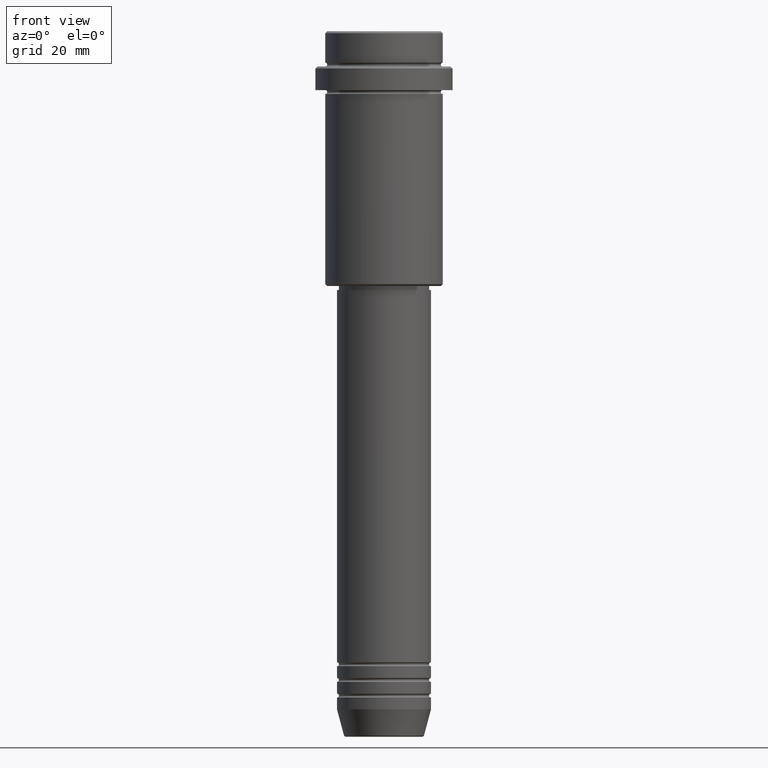
[diagram: clean part render]
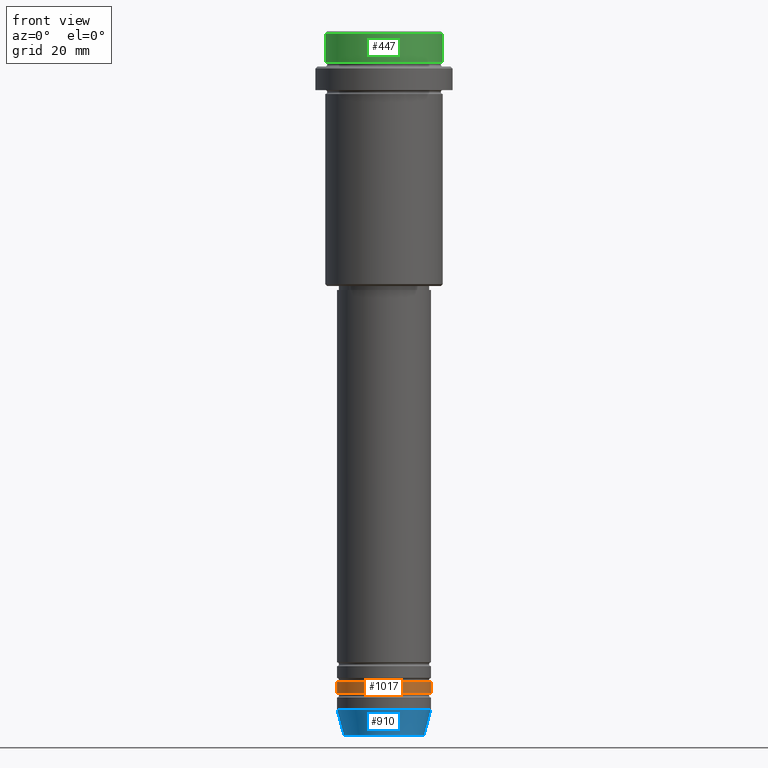
[diagram: same view with three faces highlighted in distinct colors, each labeled with its STEP entity id]
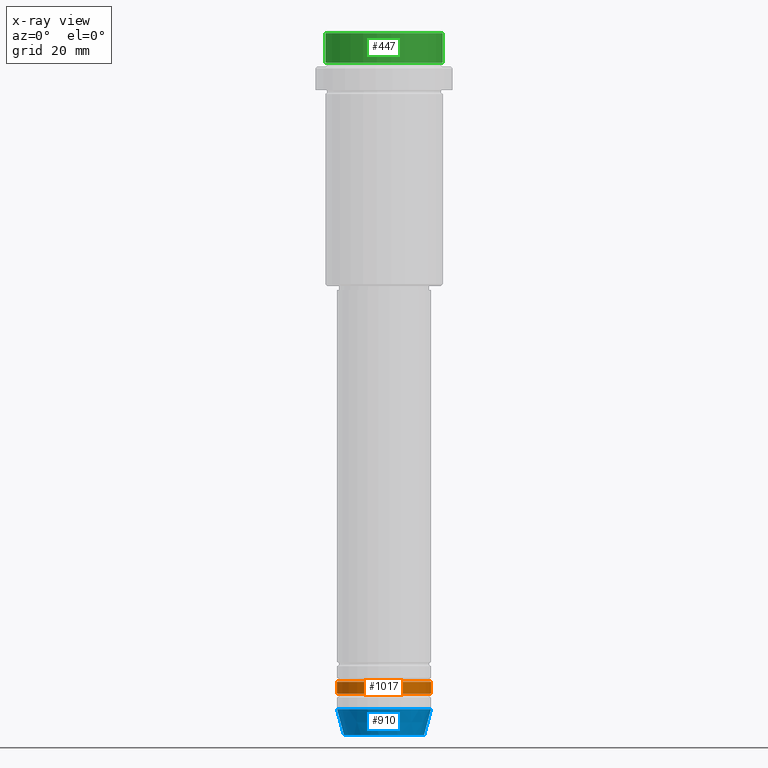
[diagram: x-ray of the same camera — body ghosted, the three highlighted faces saturated]
A machine part, front view with three faces highlighted in distinct colors.
The next image is the same camera in x-ray (body ghosted, the three faces saturated) — at least one of them is partly hidden behind the body in this view.
Their STEP definitions:

[orange] entity #1017 — the highlighted cylindrical surface (partial cylindrical patch) has radius 12 mm, axis along (-0, -0, 1).
#37 = DIRECTION ( 'NONE',  ( 1.000000000000000000, 0.000000000000000000, 0.000000000000000000 ) ) ;
#50 = ORIENTED_EDGE ( 'NONE', *, *, #73, .F. ) ;
#73 = EDGE_CURVE ( 'NONE', #305, #678, #1356, .T. ) ;
#95 = CARTESIAN_POINT ( 'NONE',  ( 0.000000000000000000, 0.000000000000000000, 0.000000000000000000 ) ) ;
#120 = CARTESIAN_POINT ( 'NONE',  ( -12.00000000000000000, 1.469576158976823947E-15, -165.9999999999999147 ) ) ;
#132 = DIRECTION ( 'NONE',  ( -0.000000000000000000, -0.000000000000000000, 1.000000000000000000 ) ) ;
#154 = AXIS2_PLACEMENT_3D ( 'NONE', #95, #753, #213 ) ;
#155 = CARTESIAN_POINT ( 'NONE',  ( -12.00000000000000000, 1.469576158976823947E-15, -168.9999999999999147 ) ) ;
#189 = EDGE_LOOP ( 'NONE', ( #1133, #1383, #1232, #50 ) ) ;
#195 = AXIS2_PLACEMENT_3D ( 'NONE', #669, #132, #1348 ) ;
#213 = DIRECTION ( 'NONE',  ( 1.000000000000000000, 0.000000000000000000, 0.000000000000000000 ) ) ;
#236 = LINE ( 'NONE', #867, #702 ) ;
#237 = CARTESIAN_POINT ( 'NONE',  ( 0.000000000000000000, 0.000000000000000000, -165.9999999999999147 ) ) ;
#255 = VERTEX_POINT ( 'NONE', #155 ) ;
#283 = EDGE_CURVE ( 'NONE', #255, #739, #718, .T. ) ;
#305 = VERTEX_POINT ( 'NONE', #120 ) ;
#358 = AXIS2_PLACEMENT_3D ( 'NONE', #237, #1100, #37 ) ;
#463 = EDGE_CURVE ( 'NONE', #255, #305, #743, .T. ) ;
#486 = VECTOR ( 'NONE', #944, 1000.000000000000000 ) ;
#543 = FACE_OUTER_BOUND ( 'NONE', #189, .T. ) ;
#577 = CARTESIAN_POINT ( 'NONE',  ( 12.00000000000000000, 0.000000000000000000, -165.9999999999999147 ) ) ;
#636 = CYLINDRICAL_SURFACE ( 'NONE', #154, 12.00000000000000000 ) ;
#667 = DIRECTION ( 'NONE',  ( -0.000000000000000000, -0.000000000000000000, 1.000000000000000000 ) ) ;
#669 = CARTESIAN_POINT ( 'NONE',  ( 0.000000000000000000, 0.000000000000000000, -168.9999999999999147 ) ) ;
#678 = VERTEX_POINT ( 'NONE', #577 ) ;
#702 = VECTOR ( 'NONE', #667, 1000.000000000000000 ) ;
#718 = CIRCLE ( 'NONE', #195, 12.00000000000000000 ) ;
#739 = VERTEX_POINT ( 'NONE', #1123 ) ;
#743 = LINE ( 'NONE', #963, #486 ) ;
#753 = DIRECTION ( 'NONE',  ( -0.000000000000000000, -0.000000000000000000, 1.000000000000000000 ) ) ;
#867 = CARTESIAN_POINT ( 'NONE',  ( 12.00000000000000000, 0.000000000000000000, 0.000000000000000000 ) ) ;
#939 = EDGE_CURVE ( 'NONE', #739, #678, #236, .T. ) ;
#944 = DIRECTION ( 'NONE',  ( -0.000000000000000000, -0.000000000000000000, 1.000000000000000000 ) ) ;
#963 = CARTESIAN_POINT ( 'NONE',  ( -12.00000000000000000, 1.469576158976823947E-15, 0.000000000000000000 ) ) ;
#1017 = ADVANCED_FACE ( 'NONE', ( #543 ), #636, .T. ) ;
#1100 = DIRECTION ( 'NONE',  ( -0.000000000000000000, -0.000000000000000000, 1.000000000000000000 ) ) ;
#1123 = CARTESIAN_POINT ( 'NONE',  ( 12.00000000000000000, 0.000000000000000000, -168.9999999999999147 ) ) ;
#1133 = ORIENTED_EDGE ( 'NONE', *, *, #463, .F. ) ;
#1232 = ORIENTED_EDGE ( 'NONE', *, *, #939, .T. ) ;
#1348 = DIRECTION ( 'NONE',  ( 1.000000000000000000, 0.000000000000000000, 0.000000000000000000 ) ) ;
#1356 = CIRCLE ( 'NONE', #358, 12.00000000000000000 ) ;
#1383 = ORIENTED_EDGE ( 'NONE', *, *, #283, .T. ) ;

[blue] entity #910 — the highlighted conical surface has half-angle 15 deg.
#10 = FACE_OUTER_BOUND ( 'NONE', #569, .T. ) ;
#35 = VECTOR ( 'NONE', #776, 1000.000000000000000 ) ;
#117 = EDGE_CURVE ( 'NONE', #1024, #540, #1115, .T. ) ;
#140 = ORIENTED_EDGE ( 'NONE', *, *, #117, .F. ) ;
#146 = EDGE_CURVE ( 'NONE', #1024, #931, #1121, .T. ) ;
#194 = DIRECTION ( 'NONE',  ( 0.2588190451025213501, 0.000000000000000000, 0.9659258262890680902 ) ) ;
#341 = CARTESIAN_POINT ( 'NONE',  ( 12.00000000000000000, 0.000000000000000000, -173.0000000000000284 ) ) ;
#423 = CONICAL_SURFACE ( 'NONE', #656, 12.00000000000000000, 0.2617993877991500740 ) ;
#433 = DIRECTION ( 'NONE',  ( 1.000000000000000000, 0.000000000000000000, 0.000000000000000000 ) ) ;
#445 = DIRECTION ( 'NONE',  ( 1.000000000000000000, 0.000000000000000000, 0.000000000000000000 ) ) ;
#478 = EDGE_CURVE ( 'NONE', #931, #990, #634, .T. ) ;
#506 = AXIS2_PLACEMENT_3D ( 'NONE', #1203, #1068, #445 ) ;
#524 = CARTESIAN_POINT ( 'NONE',  ( 0.000000000000000000, 0.000000000000000000, -173.0000000000000284 ) ) ;
#540 = VERTEX_POINT ( 'NONE', #616 ) ;
#569 = EDGE_LOOP ( 'NONE', ( #140, #698, #880, #1255 ) ) ;
#616 = CARTESIAN_POINT ( 'NONE',  ( -12.00000000000000000, 1.469576158976823947E-15, -173.0000000000000284 ) ) ;
#627 = CARTESIAN_POINT ( 'NONE',  ( 12.00000000000000000, 0.000000000000000000, -173.0000000000000284 ) ) ;
#634 = LINE ( 'NONE', #627, #960 ) ;
#656 = AXIS2_PLACEMENT_3D ( 'NONE', #524, #1395, #433 ) ;
#698 = ORIENTED_EDGE ( 'NONE', *, *, #146, .T. ) ;
#742 = CIRCLE ( 'NONE', #506, 12.00000000000000000 ) ;
#776 = DIRECTION ( 'NONE',  ( -0.2588190451025213501, 3.169619151431772337E-17, 0.9659258262890680902 ) ) ;
#874 = CARTESIAN_POINT ( 'NONE',  ( -10.22365507213719837, 1.360806402472383336E-15, -179.6294095225512706 ) ) ;
#880 = ORIENTED_EDGE ( 'NONE', *, *, #478, .T. ) ;
#896 = AXIS2_PLACEMENT_3D ( 'NONE', #1097, #999, #1191 ) ;
#902 = EDGE_CURVE ( 'NONE', #540, #990, #742, .T. ) ;
#910 = ADVANCED_FACE ( 'NONE', ( #10 ), #423, .T. ) ;
#931 = VERTEX_POINT ( 'NONE', #1192 ) ;
#960 = VECTOR ( 'NONE', #194, 1000.000000000000000 ) ;
#990 = VERTEX_POINT ( 'NONE', #341 ) ;
#999 = DIRECTION ( 'NONE',  ( -0.000000000000000000, -0.000000000000000000, 1.000000000000000000 ) ) ;
#1024 = VERTEX_POINT ( 'NONE', #874 ) ;
#1068 = DIRECTION ( 'NONE',  ( -0.000000000000000000, -0.000000000000000000, 1.000000000000000000 ) ) ;
#1097 = CARTESIAN_POINT ( 'NONE',  ( 0.000000000000000000, 0.000000000000000000, -179.6294095225512706 ) ) ;
#1115 = LINE ( 'NONE', #1321, #35 ) ;
#1121 = CIRCLE ( 'NONE', #896, 10.22365507213719660 ) ;
#1191 = DIRECTION ( 'NONE',  ( 1.000000000000000000, 0.000000000000000000, 0.000000000000000000 ) ) ;
#1192 = CARTESIAN_POINT ( 'NONE',  ( 10.22365507213719660, 0.000000000000000000, -179.6294095225512706 ) ) ;
#1203 = CARTESIAN_POINT ( 'NONE',  ( 0.000000000000000000, 0.000000000000000000, -173.0000000000000284 ) ) ;
#1255 = ORIENTED_EDGE ( 'NONE', *, *, #902, .F. ) ;
#1321 = CARTESIAN_POINT ( 'NONE',  ( -12.00000000000000000, 1.469576158976823947E-15, -173.0000000000000284 ) ) ;
#1395 = DIRECTION ( 'NONE',  ( -0.000000000000000000, -0.000000000000000000, 1.000000000000000000 ) ) ;

[green] entity #447 — the highlighted cylindrical surface (partial cylindrical patch) has radius 15 mm, axis along (-0, -0, 1).
#68 = EDGE_CURVE ( 'NONE', #138, #1238, #811, .T. ) ;
#71 = CARTESIAN_POINT ( 'NONE',  ( 15.00000000000000000, 0.000000000000000000, -0.4999999999999831246 ) ) ;
#78 = VECTOR ( 'NONE', #624, 1000.000000000000000 ) ;
#133 = ORIENTED_EDGE ( 'NONE', *, *, #1187, .T. ) ;
#138 = VERTEX_POINT ( 'NONE', #71 ) ;
#185 = CARTESIAN_POINT ( 'NONE',  ( -15.00000000000000000, 1.836970198721029589E-15, -0.4999999999999831246 ) ) ;
#193 = AXIS2_PLACEMENT_3D ( 'NONE', #985, #1009, #1210 ) ;
#284 = DIRECTION ( 'NONE',  ( -0.000000000000000000, -0.000000000000000000, 1.000000000000000000 ) ) ;
#285 = LINE ( 'NONE', #1166, #78 ) ;
#292 = CIRCLE ( 'NONE', #1079, 15.00000000000000000 ) ;
#295 = EDGE_CURVE ( 'NONE', #837, #138, #285, .T. ) ;
#398 = AXIS2_PLACEMENT_3D ( 'NONE', #593, #536, #927 ) ;
#434 = FACE_OUTER_BOUND ( 'NONE', #544, .T. ) ;
#447 = ADVANCED_FACE ( 'NONE', ( #434 ), #840, .T. ) ;
#536 = DIRECTION ( 'NONE',  ( -0.000000000000000000, -0.000000000000000000, 1.000000000000000000 ) ) ;
#544 = EDGE_LOOP ( 'NONE', ( #1256, #133, #913, #1385 ) ) ;
#593 = CARTESIAN_POINT ( 'NONE',  ( 0.000000000000000000, 0.000000000000000000, 0.000000000000000000 ) ) ;
#624 = DIRECTION ( 'NONE',  ( -0.000000000000000000, -0.000000000000000000, 1.000000000000000000 ) ) ;
#679 = VECTOR ( 'NONE', #284, 1000.000000000000000 ) ;
#707 = CARTESIAN_POINT ( 'NONE',  ( -15.00000000000000000, 1.836970198721029589E-15, 0.000000000000000000 ) ) ;
#811 = CIRCLE ( 'NONE', #193, 15.00000000000000000 ) ;
#830 = LINE ( 'NONE', #707, #679 ) ;
#837 = VERTEX_POINT ( 'NONE', #1387 ) ;
#840 = CYLINDRICAL_SURFACE ( 'NONE', #398, 15.00000000000000000 ) ;
#852 = CARTESIAN_POINT ( 'NONE',  ( -15.00000000000000000, 1.836970198721029589E-15, -7.999999999999998224 ) ) ;
#913 = ORIENTED_EDGE ( 'NONE', *, *, #295, .T. ) ;
#921 = DIRECTION ( 'NONE',  ( -0.000000000000000000, -0.000000000000000000, 1.000000000000000000 ) ) ;
#927 = DIRECTION ( 'NONE',  ( 1.000000000000000000, 0.000000000000000000, 0.000000000000000000 ) ) ;
#949 = VERTEX_POINT ( 'NONE', #852 ) ;
#985 = CARTESIAN_POINT ( 'NONE',  ( 0.000000000000000000, 0.000000000000000000, -0.4999999999999831246 ) ) ;
#1009 = DIRECTION ( 'NONE',  ( 0.000000000000000000, 0.000000000000000000, -1.000000000000000000 ) ) ;
#1032 = DIRECTION ( 'NONE',  ( 1.000000000000000000, 0.000000000000000000, 0.000000000000000000 ) ) ;
#1079 = AXIS2_PLACEMENT_3D ( 'NONE', #1239, #921, #1032 ) ;
#1166 = CARTESIAN_POINT ( 'NONE',  ( 15.00000000000000000, 0.000000000000000000, 0.000000000000000000 ) ) ;
#1187 = EDGE_CURVE ( 'NONE', #949, #837, #292, .T. ) ;
#1210 = DIRECTION ( 'NONE',  ( 1.000000000000000000, 0.000000000000000000, 0.000000000000000000 ) ) ;
#1238 = VERTEX_POINT ( 'NONE', #185 ) ;
#1239 = CARTESIAN_POINT ( 'NONE',  ( 0.000000000000000000, 0.000000000000000000, -7.999999999999998224 ) ) ;
#1256 = ORIENTED_EDGE ( 'NONE', *, *, #1301, .F. ) ;
#1301 = EDGE_CURVE ( 'NONE', #949, #1238, #830, .T. ) ;
#1385 = ORIENTED_EDGE ( 'NONE', *, *, #68, .T. ) ;
#1387 = CARTESIAN_POINT ( 'NONE',  ( 15.00000000000000000, 0.000000000000000000, -7.999999999999998224 ) ) ;